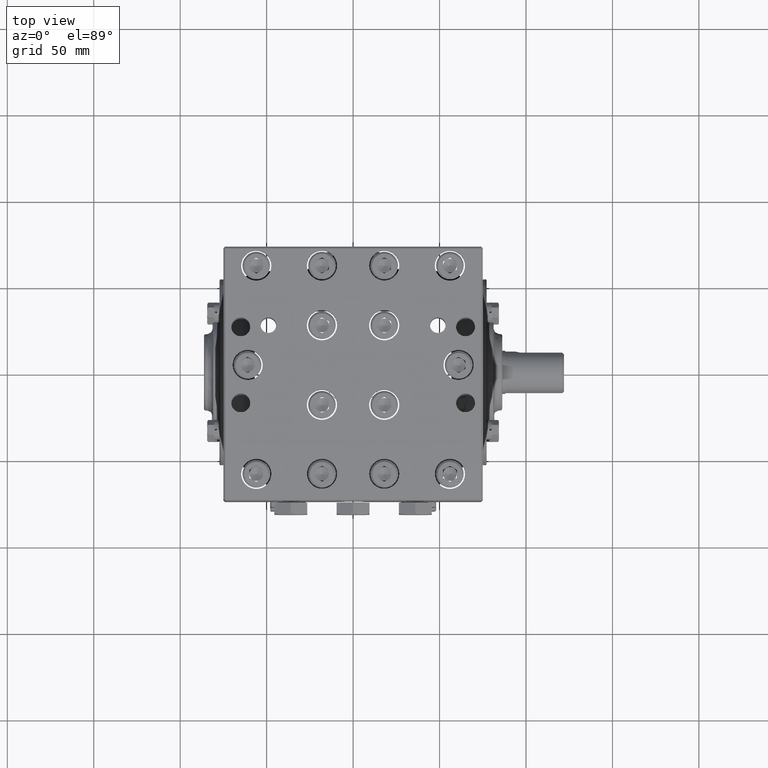
[diagram: clean part render]
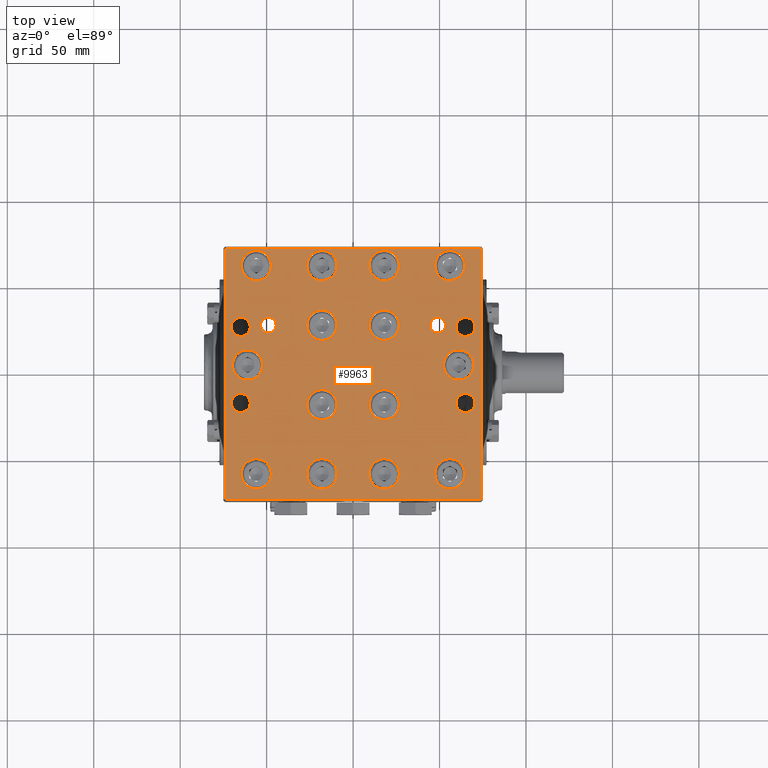
[diagram: same view with one face highlighted and labeled with its STEP entity id]
A machine part, top view. The second image highlights one B-rep face of the part: STEP entity #9963.
In plain terms, the highlighted planar face has unit normal (0, -0, 1).
Its self-contained STEP definition (entity closure, byte-faithful):
#168 = DIRECTION ( 'NONE',  ( -0.000000000000000000, -0.000000000000000000, 1.000000000000000000 ) ) ;
#219 = DIRECTION ( 'NONE',  ( 1.000000000000000000, 0.000000000000000000, 0.000000000000000000 ) ) ;
#245 = AXIS2_PLACEMENT_3D ( 'NONE', #63270, #8227, #35252 ) ;
#397 = ORIENTED_EDGE ( 'NONE', *, *, #61478, .F. ) ;
#734 = EDGE_CURVE ( 'NONE', #26983, #3858, #22505, .T. ) ;
#753 = AXIS2_PLACEMENT_3D ( 'NONE', #68820, #24210, #75833 ) ;
#777 = ORIENTED_EDGE ( 'NONE', *, *, #27638, .F. ) ;
#787 = CARTESIAN_POINT ( 'NONE',  ( -1.053149606299212504, -0.9055118110236222151, 9.645669291338583307 ) ) ;
#946 = VERTEX_POINT ( 'NONE', #38768 ) ;
#1175 = CARTESIAN_POINT ( 'NONE',  ( -2.775590551181102317, 0.8661417322834643606, 9.645669291338583307 ) ) ;
#1391 = EDGE_LOOP ( 'NONE', ( #58541, #78984 ) ) ;
#1556 = AXIS2_PLACEMENT_3D ( 'NONE', #37296, #64384, #2776 ) ;
#1782 = VERTEX_POINT ( 'NONE', #76249 ) ;
#2192 = CARTESIAN_POINT ( 'NONE',  ( -2.106299212598425008, 0.9055118110236218820, 9.645669291338583307 ) ) ;
#2776 = DIRECTION ( 'NONE',  ( 1.000000000000000000, 0.000000000000000000, 0.000000000000000000 ) ) ;
#2870 = ORIENTED_EDGE ( 'NONE', *, *, #63458, .F. ) ;
#3159 = FACE_BOUND ( 'NONE', #59503, .T. ) ;
#3368 = AXIS2_PLACEMENT_3D ( 'NONE', #61323, #55628, #28064 ) ;
#3487 = AXIS2_PLACEMENT_3D ( 'NONE', #55746, #16411, #63164 ) ;
#3578 = CARTESIAN_POINT ( 'NONE',  ( -2.204724409448818534, 2.263779527559055094, 9.645669291338583307 ) ) ;
#3858 = VERTEX_POINT ( 'NONE', #79005 ) ;
#4293 = CARTESIAN_POINT ( 'NONE',  ( -2.401574803149606474, 0.000000000000000000, 9.645669291338583307 ) ) ;
#4439 = FACE_BOUND ( 'NONE', #85789, .T. ) ;
#4545 = CIRCLE ( 'NONE', #46427, 0.2165354330708657848 ) ;
#4573 = EDGE_CURVE ( 'NONE', #33326, #11340, #74569, .T. ) ;
#4709 = AXIS2_PLACEMENT_3D ( 'NONE', #4293, #10040, #82191 ) ;
#4740 = EDGE_CURVE ( 'NONE', #946, #52724, #19871, .T. ) ;
#4776 = VERTEX_POINT ( 'NONE', #61217 ) ;
#4889 = FACE_BOUND ( 'NONE', #66120, .T. ) ;
#4940 = ORIENTED_EDGE ( 'NONE', *, *, #734, .F. ) ;
#5188 = AXIS2_PLACEMENT_3D ( 'NONE', #61112, #23050, #8222 ) ;
#5457 = DIRECTION ( 'NONE',  ( 1.000000000000000000, 0.000000000000000000, 0.000000000000000000 ) ) ;
#5795 = AXIS2_PLACEMENT_3D ( 'NONE', #67586, #41351, #72547 ) ;
#6129 = CIRCLE ( 'NONE', #29885, 0.3444881889763777294 ) ;
#6638 = CIRCLE ( 'NONE', #55308, 0.3444881889763777294 ) ;
#6674 = ORIENTED_EDGE ( 'NONE', *, *, #63878, .F. ) ;
#6748 = CARTESIAN_POINT ( 'NONE',  ( -1.860236220472440971, -2.480314960629921295, 9.645669291338583307 ) ) ;
#7392 = EDGE_CURVE ( 'NONE', #58172, #52940, #11167, .T. ) ;
#7593 = DIRECTION ( 'NONE',  ( -0.000000000000000000, -0.000000000000000000, 1.000000000000000000 ) ) ;
#7763 = DIRECTION ( 'NONE',  ( 1.000000000000000000, 0.000000000000000000, 0.000000000000000000 ) ) ;
#7812 = EDGE_LOOP ( 'NONE', ( #38690, #73908 ) ) ;
#8045 = CARTESIAN_POINT ( 'NONE',  ( -2.559055118110236560, -0.8661417322834646937, 9.645669291338583307 ) ) ;
#8222 = DIRECTION ( 'NONE',  ( 1.000000000000000000, 0.000000000000000000, 0.000000000000000000 ) ) ;
#8227 = DIRECTION ( 'NONE',  ( -0.000000000000000000, -0.000000000000000000, 1.000000000000000000 ) ) ;
#8850 = DIRECTION ( 'NONE',  ( 1.000000000000000000, 0.000000000000000000, 0.000000000000000000 ) ) ;
#8887 = DIRECTION ( 'NONE',  ( 1.000000000000000000, 0.000000000000000000, 0.000000000000000000 ) ) ;
#8889 = VERTEX_POINT ( 'NONE', #26290 ) ;
#8987 = CIRCLE ( 'NONE', #22954, 0.3444881889763778404 ) ;
#9105 = VERTEX_POINT ( 'NONE', #2192 ) ;
#9725 = CARTESIAN_POINT ( 'NONE',  ( -0.7086614173228347191, 2.263779527559055094, 9.645669291338583307 ) ) ;
#9782 = CARTESIAN_POINT ( 'NONE',  ( -2.549212598425196319, -2.480314960629921295, 9.645669291338583307 ) ) ;
#9783 = VERTEX_POINT ( 'NONE', #6748 ) ;
#9829 = CIRCLE ( 'NONE', #53092, 0.2165354330708657848 ) ;
#9832 = VERTEX_POINT ( 'NONE', #35063 ) ;
#9963 = ADVANCED_FACE ( 'NONE', ( #57372, #63080, #44252, #30677, #84060, #50377, #77491, #71771, #17601, #70912, #17170, #51661, #44661, #4439, #23304, #3159, #24586, #4889, #70472, #30267, #10186 ), #49962, .T. ) ;
#10040 = DIRECTION ( 'NONE',  ( -0.000000000000000000, -0.000000000000000000, 1.000000000000000000 ) ) ;
#10186 = FACE_BOUND ( 'NONE', #48661, .T. ) ;
#10916 = DIRECTION ( 'NONE',  ( -0.000000000000000000, -0.000000000000000000, 1.000000000000000000 ) ) ;
#11051 = DIRECTION ( 'NONE',  ( 1.000000000000000000, 0.000000000000000000, 0.000000000000000000 ) ) ;
#11131 = VERTEX_POINT ( 'NONE', #55996 ) ;
#11167 = CIRCLE ( 'NONE', #20949, 0.3444881889763778404 ) ;
#11340 = VERTEX_POINT ( 'NONE', #19636 ) ;
#11585 = VERTEX_POINT ( 'NONE', #29623 ) ;
#11732 = DIRECTION ( 'NONE',  ( 1.000000000000000000, 0.000000000000000000, 0.000000000000000000 ) ) ;
#11848 = DIRECTION ( 'NONE',  ( -0.000000000000000000, -0.000000000000000000, 1.000000000000000000 ) ) ;
#11956 = VERTEX_POINT ( 'NONE', #42054 ) ;
#12077 = CIRCLE ( 'NONE', #77659, 0.3444881889763777294 ) ;
#12099 = AXIS2_PLACEMENT_3D ( 'NONE', #65491, #71601, #44923 ) ;
#12323 = EDGE_LOOP ( 'NONE', ( #4940, #67519 ) ) ;
#12371 = EDGE_CURVE ( 'NONE', #18687, #49955, #64455, .T. ) ;
#12379 = ORIENTED_EDGE ( 'NONE', *, *, #82829, .F. ) ;
#12511 = CARTESIAN_POINT ( 'NONE',  ( 0.7086614173228347191, 2.263779527559055094, 9.645669291338583307 ) ) ;
#12532 = AXIS2_PLACEMENT_3D ( 'NONE', #59804, #47084, #7763 ) ;
#12607 = DIRECTION ( 'NONE',  ( 1.000000000000000000, 0.000000000000000000, 0.000000000000000000 ) ) ;
#12794 = DIRECTION ( 'NONE',  ( 1.000000000000000000, 0.000000000000000000, 0.000000000000000000 ) ) ;
#12864 = ORIENTED_EDGE ( 'NONE', *, *, #76296, .F. ) ;
#12892 = VERTEX_POINT ( 'NONE', #25913 ) ;
#12895 = CARTESIAN_POINT ( 'NONE',  ( -1.929133858267716883, 0.9055118110236218820, 9.645669291338583307 ) ) ;
#12912 = CARTESIAN_POINT ( 'NONE',  ( -2.913385826771653697, -3.090551181102361600, 9.645669291338581530 ) ) ;
#13313 = AXIS2_PLACEMENT_3D ( 'NONE', #27251, #60068, #60926 ) ;
#13665 = VERTEX_POINT ( 'NONE', #66333 ) ;
#13809 = VERTEX_POINT ( 'NONE', #1175 ) ;
#14366 = EDGE_CURVE ( 'NONE', #11340, #32042, #45032, .T. ) ;
#15026 = VERTEX_POINT ( 'NONE', #54956 ) ;
#15109 = CARTESIAN_POINT ( 'NONE',  ( -0.7086614173228347191, -2.480314960629921295, 9.645669291338583307 ) ) ;
#15126 = CARTESIAN_POINT ( 'NONE',  ( 0.7086614173228347191, -0.9055118110236222151, 9.645669291338583307 ) ) ;
#15632 = CARTESIAN_POINT ( 'NONE',  ( -2.775590551181102317, -0.8661417322834646937, 9.645669291338583307 ) ) ;
#16411 = DIRECTION ( 'NONE',  ( -0.000000000000000000, -0.000000000000000000, 1.000000000000000000 ) ) ;
#17170 = FACE_BOUND ( 'NONE', #53521, .T. ) ;
#17550 = VERTEX_POINT ( 'NONE', #28199 ) ;
#17601 = FACE_BOUND ( 'NONE', #19376, .T. ) ;
#17617 = EDGE_LOOP ( 'NONE', ( #42773, #12864 ) ) ;
#17693 = DIRECTION ( 'NONE',  ( 1.000000000000000000, 0.000000000000000000, 0.000000000000000000 ) ) ;
#17835 = AXIS2_PLACEMENT_3D ( 'NONE', #24114, #63478, #57340 ) ;
#17855 = ORIENTED_EDGE ( 'NONE', *, *, #33064, .F. ) ;
#18304 = CIRCLE ( 'NONE', #35046, 0.3444881889763777294 ) ;
#18632 = AXIS2_PLACEMENT_3D ( 'NONE', #47397, #168, #72760 ) ;
#18687 = VERTEX_POINT ( 'NONE', #35927 ) ;
#18795 = VERTEX_POINT ( 'NONE', #37232 ) ;
#18861 = CIRCLE ( 'NONE', #30006, 0.3444881889763778404 ) ;
#19091 = DIRECTION ( 'NONE',  ( 1.000000000000000000, 0.000000000000000000, 0.000000000000000000 ) ) ;
#19376 = EDGE_LOOP ( 'NONE', ( #76679, #84233 ) ) ;
#19413 = DIRECTION ( 'NONE',  ( 1.000000000000000000, 0.000000000000000000, 0.000000000000000000 ) ) ;
#19636 = CARTESIAN_POINT ( 'NONE',  ( 2.913385826771653697, 2.657480314960630086, 9.645669291338583307 ) ) ;
#19717 = CIRCLE ( 'NONE', #68582, 0.2165354330708657848 ) ;
#19871 = CIRCLE ( 'NONE', #63206, 0.3444881889763778404 ) ;
#20012 = DIRECTION ( 'NONE',  ( -0.000000000000000000, -0.000000000000000000, 1.000000000000000000 ) ) ;
#20027 = DIRECTION ( 'NONE',  ( 1.000000000000000000, 0.000000000000000000, 0.000000000000000000 ) ) ;
#20133 = DIRECTION ( 'NONE',  ( -0.000000000000000000, -0.000000000000000000, 1.000000000000000000 ) ) ;
#20251 = DIRECTION ( 'NONE',  ( 1.000000000000000000, 0.000000000000000000, 0.000000000000000000 ) ) ;
#20949 = AXIS2_PLACEMENT_3D ( 'NONE', #80154, #32480, #20251 ) ;
#21085 = CARTESIAN_POINT ( 'NONE',  ( -0.7086614173228347191, -2.480314960629921295, 9.645669291338583307 ) ) ;
#22505 = CIRCLE ( 'NONE', #67165, 0.3444881889763778404 ) ;
#22692 = VERTEX_POINT ( 'NONE', #68714 ) ;
#22746 = EDGE_CURVE ( 'NONE', #12892, #1782, #65261, .T. ) ;
#22891 = CIRCLE ( 'NONE', #18632, 0.3444881889763778404 ) ;
#22954 = AXIS2_PLACEMENT_3D ( 'NONE', #9725, #29345, #8850 ) ;
#23050 = DIRECTION ( 'NONE',  ( -0.000000000000000000, -0.000000000000000000, 1.000000000000000000 ) ) ;
#23059 = AXIS2_PLACEMENT_3D ( 'NONE', #41916, #42341, #48071 ) ;
#23211 = AXIS2_PLACEMENT_3D ( 'NONE', #76201, #74909, #8887 ) ;
#23304 = FACE_BOUND ( 'NONE', #7812, .T. ) ;
#23719 = DIRECTION ( 'NONE',  ( 0.000000000000000000, -1.000000000000000000, -4.720335989052536622E-17 ) ) ;
#23735 = EDGE_LOOP ( 'NONE', ( #31538, #66749 ) ) ;
#23896 = EDGE_CURVE ( 'NONE', #44394, #9783, #45823, .T. ) ;
#24114 = CARTESIAN_POINT ( 'NONE',  ( 2.559055118110236560, 0.8661417322834641386, 9.645669291338583307 ) ) ;
#24147 = DIRECTION ( 'NONE',  ( 0.000000000000000000, -4.720335989052536622E-17, 1.000000000000000000 ) ) ;
#24210 = DIRECTION ( 'NONE',  ( -0.000000000000000000, -0.000000000000000000, 1.000000000000000000 ) ) ;
#24287 = DIRECTION ( 'NONE',  ( -0.000000000000000000, -0.000000000000000000, 1.000000000000000000 ) ) ;
#24577 = CIRCLE ( 'NONE', #53820, 0.3444881889763778404 ) ;
#24586 = FACE_BOUND ( 'NONE', #26729, .T. ) ;
#24966 = CARTESIAN_POINT ( 'NONE',  ( 2.401574803149606474, 0.000000000000000000, 9.645669291338583307 ) ) ;
#25424 = VERTEX_POINT ( 'NONE', #36237 ) ;
#25738 = CIRCLE ( 'NONE', #28510, 0.3444881889763778404 ) ;
#25751 = DIRECTION ( 'NONE',  ( 1.000000000000000000, 0.000000000000000000, 0.000000000000000000 ) ) ;
#25913 = CARTESIAN_POINT ( 'NONE',  ( 2.342519685039370803, 0.8661417322834641386, 9.645669291338583307 ) ) ;
#25972 = EDGE_CURVE ( 'NONE', #52940, #58172, #59419, .T. ) ;
#26290 = CARTESIAN_POINT ( 'NONE',  ( -2.057086614173228689, 0.000000000000000000, 9.645669291338583307 ) ) ;
#26308 = AXIS2_PLACEMENT_3D ( 'NONE', #72936, #66374, #20027 ) ;
#26347 = DIRECTION ( 'NONE',  ( -0.000000000000000000, -0.000000000000000000, 1.000000000000000000 ) ) ;
#26729 = EDGE_LOOP ( 'NONE', ( #75794, #6674 ) ) ;
#26983 = VERTEX_POINT ( 'NONE', #37128 ) ;
#27044 = EDGE_CURVE ( 'NONE', #52724, #946, #24577, .T. ) ;
#27251 = CARTESIAN_POINT ( 'NONE',  ( 2.204724409448818534, 2.263779527559055094, 9.645669291338583307 ) ) ;
#27277 = CIRCLE ( 'NONE', #13313, 0.3444881889763777294 ) ;
#27638 = EDGE_CURVE ( 'NONE', #11585, #54830, #32971, .T. ) ;
#27747 = DIRECTION ( 'NONE',  ( -0.000000000000000000, -0.000000000000000000, 1.000000000000000000 ) ) ;
#28064 = DIRECTION ( 'NONE',  ( 1.000000000000000000, 0.000000000000000000, 0.000000000000000000 ) ) ;
#28199 = CARTESIAN_POINT ( 'NONE',  ( -2.342519685039370803, 0.8661417322834643606, 9.645669291338583307 ) ) ;
#28322 = CIRCLE ( 'NONE', #74402, 0.2165354330708657848 ) ;
#28332 = ORIENTED_EDGE ( 'NONE', *, *, #82144, .F. ) ;
#28510 = AXIS2_PLACEMENT_3D ( 'NONE', #49466, #38366, #11732 ) ;
#28647 = AXIS2_PLACEMENT_3D ( 'NONE', #21085, #60461, #35031 ) ;
#29345 = DIRECTION ( 'NONE',  ( -0.000000000000000000, -0.000000000000000000, 1.000000000000000000 ) ) ;
#29623 = CARTESIAN_POINT ( 'NONE',  ( 1.860236220472440971, -2.480314960629921295, 9.645669291338583307 ) ) ;
#29884 = CIRCLE ( 'NONE', #3368, 0.1771653543307082912 ) ;
#29885 = AXIS2_PLACEMENT_3D ( 'NONE', #57826, #77062, #11051 ) ;
#30006 = AXIS2_PLACEMENT_3D ( 'NONE', #73293, #60178, #46164 ) ;
#30143 = EDGE_LOOP ( 'NONE', ( #68028, #31490 ) ) ;
#30267 = FACE_BOUND ( 'NONE', #23735, .T. ) ;
#30327 = CARTESIAN_POINT ( 'NONE',  ( -0.3641732283464568787, 2.263779527559055094, 9.645669291338583307 ) ) ;
#30677 = FACE_BOUND ( 'NONE', #17617, .T. ) ;
#30980 = ORIENTED_EDGE ( 'NONE', *, *, #14366, .T. ) ;
#31013 = CARTESIAN_POINT ( 'NONE',  ( -2.952755905511811108, -3.051181102362204189, 9.645669291338581530 ) ) ;
#31490 = ORIENTED_EDGE ( 'NONE', *, *, #69628, .F. ) ;
#31500 = EDGE_CURVE ( 'NONE', #37099, #11956, #42767, .T. ) ;
#31538 = ORIENTED_EDGE ( 'NONE', *, *, #7392, .F. ) ;
#31617 = CARTESIAN_POINT ( 'NONE',  ( 2.913385826771653697, -3.051181102362204189, 9.645669291338581530 ) ) ;
#31931 = ORIENTED_EDGE ( 'NONE', *, *, #84629, .F. ) ;
#32042 = VERTEX_POINT ( 'NONE', #48722 ) ;
#32121 = EDGE_LOOP ( 'NONE', ( #30980, #59795, #82062, #32597 ) ) ;
#32380 = EDGE_CURVE ( 'NONE', #75688, #33465, #8987, .T. ) ;
#32480 = DIRECTION ( 'NONE',  ( -0.000000000000000000, -0.000000000000000000, 1.000000000000000000 ) ) ;
#32597 = ORIENTED_EDGE ( 'NONE', *, *, #4573, .T. ) ;
#32971 = CIRCLE ( 'NONE', #23211, 0.3444881889763777294 ) ;
#33064 = EDGE_CURVE ( 'NONE', #79858, #76880, #35762, .T. ) ;
#33326 = VERTEX_POINT ( 'NONE', #31617 ) ;
#33465 = VERTEX_POINT ( 'NONE', #47758 ) ;
#33642 = CARTESIAN_POINT ( 'NONE',  ( -1.860236220472440971, 2.263779527559055094, 9.645669291338583307 ) ) ;
#33738 = AXIS2_PLACEMENT_3D ( 'NONE', #80781, #20012, #79493 ) ;
#33782 = CARTESIAN_POINT ( 'NONE',  ( 1.053149606299212504, 2.263779527559055094, 9.645669291338583307 ) ) ;
#33901 = VECTOR ( 'NONE', #65181, 39.37007874015748143 ) ;
#34309 = DIRECTION ( 'NONE',  ( 0.000000000000000000, 1.000000000000000000, 4.720335989052536622E-17 ) ) ;
#35031 = DIRECTION ( 'NONE',  ( 1.000000000000000000, 0.000000000000000000, 0.000000000000000000 ) ) ;
#35046 = AXIS2_PLACEMENT_3D ( 'NONE', #24966, #11848, #56910 ) ;
#35063 = CARTESIAN_POINT ( 'NONE',  ( 2.342519685039370803, -0.8661417322834635835, 9.645669291338583307 ) ) ;
#35089 = DIRECTION ( 'NONE',  ( -0.000000000000000000, -0.000000000000000000, 1.000000000000000000 ) ) ;
#35252 = DIRECTION ( 'NONE',  ( 1.000000000000000000, 0.000000000000000000, 0.000000000000000000 ) ) ;
#35405 = DIRECTION ( 'NONE',  ( -0.000000000000000000, -0.000000000000000000, 1.000000000000000000 ) ) ;
#35622 = CIRCLE ( 'NONE', #753, 0.3444881889763778404 ) ;
#35762 = CIRCLE ( 'NONE', #84700, 0.1771653543307082912 ) ;
#35927 = CARTESIAN_POINT ( 'NONE',  ( 1.053149606299212504, -2.480314960629921295, 9.645669291338583307 ) ) ;
#36237 = CARTESIAN_POINT ( 'NONE',  ( -0.3641732283464568787, -2.480314960629921295, 9.645669291338583307 ) ) ;
#37099 = VERTEX_POINT ( 'NONE', #62226 ) ;
#37128 = CARTESIAN_POINT ( 'NONE',  ( 1.053149606299212504, 0.9055118110236218820, 9.645669291338583307 ) ) ;
#37161 = DIRECTION ( 'NONE',  ( 1.000000000000000000, 0.000000000000000000, 0.000000000000000000 ) ) ;
#37232 = CARTESIAN_POINT ( 'NONE',  ( -1.751968503937008759, 0.9055118110236218820, 9.645669291338583307 ) ) ;
#37296 = CARTESIAN_POINT ( 'NONE',  ( -2.401574803149606474, 0.000000000000000000, 9.645669291338583307 ) ) ;
#37457 = DIRECTION ( 'NONE',  ( 1.000000000000000000, 0.000000000000000000, 0.000000000000000000 ) ) ;
#37576 = EDGE_LOOP ( 'NONE', ( #56933, #2870 ) ) ;
#38207 = CIRCLE ( 'NONE', #4709, 0.3444881889763777294 ) ;
#38366 = DIRECTION ( 'NONE',  ( -0.000000000000000000, -0.000000000000000000, 1.000000000000000000 ) ) ;
#38690 = ORIENTED_EDGE ( 'NONE', *, *, #82312, .F. ) ;
#38768 = CARTESIAN_POINT ( 'NONE',  ( 1.053149606299212504, -0.9055118110236222151, 9.645669291338583307 ) ) ;
#39293 = CIRCLE ( 'NONE', #40660, 0.3444881889763778404 ) ;
#39424 = VERTEX_POINT ( 'NONE', #65887 ) ;
#40660 = AXIS2_PLACEMENT_3D ( 'NONE', #15109, #20133, #17693 ) ;
#41351 = DIRECTION ( 'NONE',  ( -0.000000000000000000, -0.000000000000000000, 1.000000000000000000 ) ) ;
#41744 = DIRECTION ( 'NONE',  ( -0.000000000000000000, -0.000000000000000000, 1.000000000000000000 ) ) ;
#41796 = ORIENTED_EDGE ( 'NONE', *, *, #57341, .F. ) ;
#41916 = CARTESIAN_POINT ( 'NONE',  ( 1.929133858267716661, 0.9055118110236218820, 9.645669291338583307 ) ) ;
#42054 = CARTESIAN_POINT ( 'NONE',  ( 2.549212598425196319, 2.263779527559055094, 9.645669291338583307 ) ) ;
#42341 = DIRECTION ( 'NONE',  ( -0.000000000000000000, -0.000000000000000000, 1.000000000000000000 ) ) ;
#42550 = CIRCLE ( 'NONE', #3487, 0.3444881889763777294 ) ;
#42736 = CIRCLE ( 'NONE', #73268, 0.1771653543307082912 ) ;
#42767 = CIRCLE ( 'NONE', #12099, 0.3444881889763777294 ) ;
#42773 = ORIENTED_EDGE ( 'NONE', *, *, #59726, .F. ) ;
#42820 = ORIENTED_EDGE ( 'NONE', *, *, #80399, .F. ) ;
#42974 = CARTESIAN_POINT ( 'NONE',  ( -0.7086614173228347191, 0.9055118110236218820, 9.645669291338583307 ) ) ;
#42983 = CARTESIAN_POINT ( 'NONE',  ( 0.7086614173228347191, 0.9055118110236218820, 9.645669291338583307 ) ) ;
#43525 = EDGE_CURVE ( 'NONE', #13809, #17550, #53781, .T. ) ;
#43684 = EDGE_CURVE ( 'NONE', #71254, #11131, #18861, .T. ) ;
#44155 = LINE ( 'NONE', #31013, #85855 ) ;
#44252 = FACE_BOUND ( 'NONE', #65910, .T. ) ;
#44394 = VERTEX_POINT ( 'NONE', #9782 ) ;
#44591 = ORIENTED_EDGE ( 'NONE', *, *, #22746, .F. ) ;
#44661 = FACE_BOUND ( 'NONE', #69066, .T. ) ;
#44923 = DIRECTION ( 'NONE',  ( 1.000000000000000000, 0.000000000000000000, 0.000000000000000000 ) ) ;
#45032 = LINE ( 'NONE', #58196, #33901 ) ;
#45308 = DIRECTION ( 'NONE',  ( -0.000000000000000000, -0.000000000000000000, 1.000000000000000000 ) ) ;
#45812 = CARTESIAN_POINT ( 'NONE',  ( -2.746062992125984259, 4.218763579739894579E-17, 9.645669291338583307 ) ) ;
#45823 = CIRCLE ( 'NONE', #26308, 0.3444881889763777294 ) ;
#46094 = CARTESIAN_POINT ( 'NONE',  ( 2.549212598425196319, -2.480314960629921295, 9.645669291338583307 ) ) ;
#46164 = DIRECTION ( 'NONE',  ( 1.000000000000000000, 0.000000000000000000, 0.000000000000000000 ) ) ;
#46281 = ORIENTED_EDGE ( 'NONE', *, *, #62396, .F. ) ;
#46365 = CIRCLE ( 'NONE', #33738, 0.3444881889763777294 ) ;
#46427 = AXIS2_PLACEMENT_3D ( 'NONE', #8045, #7593, #19413 ) ;
#46844 = EDGE_CURVE ( 'NONE', #9783, #44394, #6638, .T. ) ;
#47084 = DIRECTION ( 'NONE',  ( -0.000000000000000000, -0.000000000000000000, 1.000000000000000000 ) ) ;
#47193 = DIRECTION ( 'NONE',  ( -0.000000000000000000, -0.000000000000000000, 1.000000000000000000 ) ) ;
#47397 = CARTESIAN_POINT ( 'NONE',  ( 0.7086614173228347191, 0.9055118110236218820, 9.645669291338583307 ) ) ;
#47462 = ORIENTED_EDGE ( 'NONE', *, *, #46844, .F. ) ;
#47758 = CARTESIAN_POINT ( 'NONE',  ( -1.053149606299212504, 2.263779527559055094, 9.645669291338583307 ) ) ;
#48071 = DIRECTION ( 'NONE',  ( 1.000000000000000000, 0.000000000000000000, 0.000000000000000000 ) ) ;
#48661 = EDGE_LOOP ( 'NONE', ( #41796, #70749 ) ) ;
#48697 = DIRECTION ( 'NONE',  ( -0.000000000000000000, -0.000000000000000000, 1.000000000000000000 ) ) ;
#48722 = CARTESIAN_POINT ( 'NONE',  ( -2.913385826771653697, 2.657480314960630086, 9.645669291338583307 ) ) ;
#49466 = CARTESIAN_POINT ( 'NONE',  ( -0.7086614173228347191, -0.9055118110236222151, 9.645669291338583307 ) ) ;
#49736 = EDGE_CURVE ( 'NONE', #11131, #71254, #64659, .T. ) ;
#49955 = VERTEX_POINT ( 'NONE', #59577 ) ;
#49962 = PLANE ( 'NONE',  #74066 ) ;
#50377 = FACE_BOUND ( 'NONE', #30143, .T. ) ;
#50555 = CIRCLE ( 'NONE', #245, 0.3444881889763778404 ) ;
#50558 = ORIENTED_EDGE ( 'NONE', *, *, #63251, .F. ) ;
#50571 = VECTOR ( 'NONE', #34309, 39.37007874015748143 ) ;
#50742 = ORIENTED_EDGE ( 'NONE', *, *, #49736, .F. ) ;
#51344 = CARTESIAN_POINT ( 'NONE',  ( 0.3641732283464568787, -0.9055118110236222151, 9.645669291338583307 ) ) ;
#51661 = FACE_BOUND ( 'NONE', #37576, .T. ) ;
#51710 = EDGE_CURVE ( 'NONE', #25424, #80085, #39293, .T. ) ;
#51836 = DIRECTION ( 'NONE',  ( -0.000000000000000000, -0.000000000000000000, 1.000000000000000000 ) ) ;
#52163 = CARTESIAN_POINT ( 'NONE',  ( 2.106299212598425008, 0.9055118110236218820, 9.645669291338583307 ) ) ;
#52275 = VERTEX_POINT ( 'NONE', #787 ) ;
#52412 = ORIENTED_EDGE ( 'NONE', *, *, #82376, .F. ) ;
#52472 = ORIENTED_EDGE ( 'NONE', *, *, #52926, .F. ) ;
#52724 = VERTEX_POINT ( 'NONE', #51344 ) ;
#52838 = CARTESIAN_POINT ( 'NONE',  ( 2.559055118110236560, -0.8661417322834635835, 9.645669291338583307 ) ) ;
#52926 = EDGE_CURVE ( 'NONE', #67151, #13665, #4545, .T. ) ;
#52940 = VERTEX_POINT ( 'NONE', #74455 ) ;
#53092 = AXIS2_PLACEMENT_3D ( 'NONE', #76542, #35405, #37161 ) ;
#53521 = EDGE_LOOP ( 'NONE', ( #63378, #50558 ) ) ;
#53781 = CIRCLE ( 'NONE', #83108, 0.2165354330708657848 ) ;
#53820 = AXIS2_PLACEMENT_3D ( 'NONE', #69910, #10916, #85998 ) ;
#54830 = VERTEX_POINT ( 'NONE', #46094 ) ;
#54956 = CARTESIAN_POINT ( 'NONE',  ( -0.3641732283464568787, -0.9055118110236222151, 9.645669291338583307 ) ) ;
#55308 = AXIS2_PLACEMENT_3D ( 'NONE', #59335, #45308, #37457 ) ;
#55522 = EDGE_CURVE ( 'NONE', #15026, #52275, #25738, .T. ) ;
#55628 = DIRECTION ( 'NONE',  ( -0.000000000000000000, -0.000000000000000000, 1.000000000000000000 ) ) ;
#55684 = DIRECTION ( 'NONE',  ( 1.000000000000000000, 0.000000000000000000, 0.000000000000000000 ) ) ;
#55746 = CARTESIAN_POINT ( 'NONE',  ( -2.204724409448818534, 2.263779527559055094, 9.645669291338583307 ) ) ;
#55996 = CARTESIAN_POINT ( 'NONE',  ( -1.053149606299212504, 0.9055118110236218820, 9.645669291338583307 ) ) ;
#56335 = CARTESIAN_POINT ( 'NONE',  ( -2.913385826771653697, -3.051181102362204189, 9.645669291338581530 ) ) ;
#56350 = EDGE_CURVE ( 'NONE', #39424, #70874, #42550, .T. ) ;
#56514 = CIRCLE ( 'NONE', #23059, 0.1771653543307082912 ) ;
#56910 = DIRECTION ( 'NONE',  ( 1.000000000000000000, 0.000000000000000000, 0.000000000000000000 ) ) ;
#56933 = ORIENTED_EDGE ( 'NONE', *, *, #51710, .F. ) ;
#57340 = DIRECTION ( 'NONE',  ( 1.000000000000000000, 0.000000000000000000, 0.000000000000000000 ) ) ;
#57341 = EDGE_CURVE ( 'NONE', #11956, #37099, #27277, .T. ) ;
#57372 = FACE_OUTER_BOUND ( 'NONE', #32121, .T. ) ;
#57826 = CARTESIAN_POINT ( 'NONE',  ( 2.204724409448818534, -2.480314960629921295, 9.645669291338583307 ) ) ;
#58074 = AXIS2_PLACEMENT_3D ( 'NONE', #72810, #51836, #219 ) ;
#58172 = VERTEX_POINT ( 'NONE', #33782 ) ;
#58196 = CARTESIAN_POINT ( 'NONE',  ( -2.952755905511811108, 2.657480314960630086, 9.645669291338583307 ) ) ;
#58541 = ORIENTED_EDGE ( 'NONE', *, *, #64519, .F. ) ;
#58580 = EDGE_CURVE ( 'NONE', #78485, #33326, #44155, .T. ) ;
#59335 = CARTESIAN_POINT ( 'NONE',  ( -2.204724409448818534, -2.480314960629921295, 9.645669291338583307 ) ) ;
#59419 = CIRCLE ( 'NONE', #77561, 0.3444881889763778404 ) ;
#59492 = CARTESIAN_POINT ( 'NONE',  ( -2.559055118110236560, -0.8661417322834646937, 9.645669291338583307 ) ) ;
#59503 = EDGE_LOOP ( 'NONE', ( #397, #777 ) ) ;
#59577 = CARTESIAN_POINT ( 'NONE',  ( 0.3641732283464568787, -2.480314960629921295, 9.645669291338583307 ) ) ;
#59726 = EDGE_CURVE ( 'NONE', #22692, #9832, #28322, .T. ) ;
#59795 = ORIENTED_EDGE ( 'NONE', *, *, #64840, .T. ) ;
#59804 = CARTESIAN_POINT ( 'NONE',  ( 2.559055118110236560, 0.8661417322834641386, 9.645669291338583307 ) ) ;
#60068 = DIRECTION ( 'NONE',  ( -0.000000000000000000, -0.000000000000000000, 1.000000000000000000 ) ) ;
#60178 = DIRECTION ( 'NONE',  ( -0.000000000000000000, -0.000000000000000000, 1.000000000000000000 ) ) ;
#60335 = DIRECTION ( 'NONE',  ( 1.000000000000000000, 0.000000000000000000, 0.000000000000000000 ) ) ;
#60461 = DIRECTION ( 'NONE',  ( -0.000000000000000000, -0.000000000000000000, 1.000000000000000000 ) ) ;
#60880 = CARTESIAN_POINT ( 'NONE',  ( 2.057086614173228689, 4.218763579739894579E-17, 9.645669291338583307 ) ) ;
#60926 = DIRECTION ( 'NONE',  ( 1.000000000000000000, 0.000000000000000000, 0.000000000000000000 ) ) ;
#61112 = CARTESIAN_POINT ( 'NONE',  ( 2.559055118110236560, -0.8661417322834635835, 9.645669291338583307 ) ) ;
#61217 = CARTESIAN_POINT ( 'NONE',  ( 2.746062992125984259, 0.000000000000000000, 9.645669291338583307 ) ) ;
#61323 = CARTESIAN_POINT ( 'NONE',  ( -1.929133858267716883, 0.9055118110236218820, 9.645669291338583307 ) ) ;
#61423 = CARTESIAN_POINT ( 'NONE',  ( 1.929133858267716661, 0.9055118110236218820, 9.645669291338583307 ) ) ;
#61478 = EDGE_CURVE ( 'NONE', #54830, #11585, #6129, .T. ) ;
#62226 = CARTESIAN_POINT ( 'NONE',  ( 1.860236220472440971, 2.263779527559055094, 9.645669291338583307 ) ) ;
#62255 = CIRCLE ( 'NONE', #58074, 0.3444881889763778404 ) ;
#62396 = EDGE_CURVE ( 'NONE', #76880, #79858, #56514, .T. ) ;
#63062 = DIRECTION ( 'NONE',  ( -0.000000000000000000, -0.000000000000000000, 1.000000000000000000 ) ) ;
#63080 = FACE_BOUND ( 'NONE', #77047, .T. ) ;
#63164 = DIRECTION ( 'NONE',  ( 1.000000000000000000, 0.000000000000000000, 0.000000000000000000 ) ) ;
#63206 = AXIS2_PLACEMENT_3D ( 'NONE', #15126, #41744, #68417 ) ;
#63251 = EDGE_CURVE ( 'NONE', #52275, #15026, #35622, .T. ) ;
#63270 = CARTESIAN_POINT ( 'NONE',  ( -0.7086614173228347191, 2.263779527559055094, 9.645669291338583307 ) ) ;
#63378 = ORIENTED_EDGE ( 'NONE', *, *, #55522, .F. ) ;
#63458 = EDGE_CURVE ( 'NONE', #80085, #25424, #66350, .T. ) ;
#63478 = DIRECTION ( 'NONE',  ( -0.000000000000000000, -0.000000000000000000, 1.000000000000000000 ) ) ;
#63878 = EDGE_CURVE ( 'NONE', #49955, #18687, #62255, .T. ) ;
#64384 = DIRECTION ( 'NONE',  ( -0.000000000000000000, -0.000000000000000000, 1.000000000000000000 ) ) ;
#64455 = CIRCLE ( 'NONE', #5795, 0.3444881889763778404 ) ;
#64519 = EDGE_CURVE ( 'NONE', #70874, #39424, #12077, .T. ) ;
#64659 = CIRCLE ( 'NONE', #71639, 0.3444881889763778404 ) ;
#64840 = EDGE_CURVE ( 'NONE', #32042, #78485, #78937, .T. ) ;
#64895 = ORIENTED_EDGE ( 'NONE', *, *, #27044, .F. ) ;
#65181 = DIRECTION ( 'NONE',  ( -1.000000000000000000, 0.000000000000000000, 0.000000000000000000 ) ) ;
#65261 = CIRCLE ( 'NONE', #17835, 0.2165354330708657848 ) ;
#65279 = VERTEX_POINT ( 'NONE', #60880 ) ;
#65491 = CARTESIAN_POINT ( 'NONE',  ( 2.204724409448818534, 2.263779527559055094, 9.645669291338583307 ) ) ;
#65887 = CARTESIAN_POINT ( 'NONE',  ( -2.549212598425196319, 2.263779527559055094, 9.645669291338583307 ) ) ;
#65910 = EDGE_LOOP ( 'NONE', ( #52412, #52472 ) ) ;
#66046 = VERTEX_POINT ( 'NONE', #45812 ) ;
#66120 = EDGE_LOOP ( 'NONE', ( #76670, #64895 ) ) ;
#66333 = CARTESIAN_POINT ( 'NONE',  ( -2.342519685039370803, -0.8661417322834646937, 9.645669291338583307 ) ) ;
#66350 = CIRCLE ( 'NONE', #28647, 0.3444881889763778404 ) ;
#66374 = DIRECTION ( 'NONE',  ( -0.000000000000000000, -0.000000000000000000, 1.000000000000000000 ) ) ;
#66749 = ORIENTED_EDGE ( 'NONE', *, *, #25972, .F. ) ;
#66792 = DIRECTION ( 'NONE',  ( -0.000000000000000000, -0.000000000000000000, 1.000000000000000000 ) ) ;
#66991 = EDGE_CURVE ( 'NONE', #65279, #4776, #46365, .T. ) ;
#67151 = VERTEX_POINT ( 'NONE', #15632 ) ;
#67165 = AXIS2_PLACEMENT_3D ( 'NONE', #42983, #48697, #69649 ) ;
#67193 = EDGE_CURVE ( 'NONE', #33465, #75688, #50555, .T. ) ;
#67519 = ORIENTED_EDGE ( 'NONE', *, *, #86391, .F. ) ;
#67586 = CARTESIAN_POINT ( 'NONE',  ( 0.7086614173228347191, -2.480314960629921295, 9.645669291338583307 ) ) ;
#67891 = CARTESIAN_POINT ( 'NONE',  ( -1.053149606299212504, -2.480314960629921295, 9.645669291338583307 ) ) ;
#68028 = ORIENTED_EDGE ( 'NONE', *, *, #72770, .F. ) ;
#68173 = EDGE_LOOP ( 'NONE', ( #28332, #44591 ) ) ;
#68417 = DIRECTION ( 'NONE',  ( 1.000000000000000000, 0.000000000000000000, 0.000000000000000000 ) ) ;
#68582 = AXIS2_PLACEMENT_3D ( 'NONE', #59492, #47193, #60335 ) ;
#68714 = CARTESIAN_POINT ( 'NONE',  ( 2.775590551181102317, -0.8661417322834635835, 9.645669291338583307 ) ) ;
#68820 = CARTESIAN_POINT ( 'NONE',  ( -0.7086614173228347191, -0.9055118110236222151, 9.645669291338583307 ) ) ;
#69066 = EDGE_LOOP ( 'NONE', ( #47462, #75506 ) ) ;
#69628 = EDGE_CURVE ( 'NONE', #9105, #18795, #29884, .T. ) ;
#69649 = DIRECTION ( 'NONE',  ( 1.000000000000000000, 0.000000000000000000, 0.000000000000000000 ) ) ;
#69910 = CARTESIAN_POINT ( 'NONE',  ( 0.7086614173228347191, -0.9055118110236222151, 9.645669291338583307 ) ) ;
#69961 = CIRCLE ( 'NONE', #1556, 0.3444881889763777294 ) ;
#70472 = FACE_BOUND ( 'NONE', #12323, .T. ) ;
#70749 = ORIENTED_EDGE ( 'NONE', *, *, #31500, .F. ) ;
#70874 = VERTEX_POINT ( 'NONE', #33642 ) ;
#70912 = FACE_BOUND ( 'NONE', #75225, .T. ) ;
#71092 = DIRECTION ( 'NONE',  ( -0.000000000000000000, -0.000000000000000000, 1.000000000000000000 ) ) ;
#71254 = VERTEX_POINT ( 'NONE', #76787 ) ;
#71601 = DIRECTION ( 'NONE',  ( -0.000000000000000000, -0.000000000000000000, 1.000000000000000000 ) ) ;
#71639 = AXIS2_PLACEMENT_3D ( 'NONE', #42974, #35089, #55684 ) ;
#71771 = FACE_BOUND ( 'NONE', #1391, .T. ) ;
#72547 = DIRECTION ( 'NONE',  ( 1.000000000000000000, 0.000000000000000000, 0.000000000000000000 ) ) ;
#72760 = DIRECTION ( 'NONE',  ( 1.000000000000000000, 0.000000000000000000, 0.000000000000000000 ) ) ;
#72770 = EDGE_CURVE ( 'NONE', #18795, #9105, #42736, .T. ) ;
#72810 = CARTESIAN_POINT ( 'NONE',  ( 0.7086614173228347191, -2.480314960629921295, 9.645669291338583307 ) ) ;
#72936 = CARTESIAN_POINT ( 'NONE',  ( -2.204724409448818534, -2.480314960629921295, 9.645669291338583307 ) ) ;
#73268 = AXIS2_PLACEMENT_3D ( 'NONE', #12895, #24287, #5457 ) ;
#73293 = CARTESIAN_POINT ( 'NONE',  ( -0.7086614173228347191, 0.9055118110236218820, 9.645669291338583307 ) ) ;
#73564 = CARTESIAN_POINT ( 'NONE',  ( -2.559055118110236560, 0.8661417322834643606, 9.645669291338583307 ) ) ;
#73577 = ORIENTED_EDGE ( 'NONE', *, *, #43684, .F. ) ;
#73908 = ORIENTED_EDGE ( 'NONE', *, *, #66991, .F. ) ;
#73927 = CIRCLE ( 'NONE', #12532, 0.2165354330708657848 ) ;
#74066 = AXIS2_PLACEMENT_3D ( 'NONE', #76628, #24147, #23719 ) ;
#74126 = CARTESIAN_POINT ( 'NONE',  ( 2.913385826771653697, 2.696850393700787496, 9.645669291338583307 ) ) ;
#74402 = AXIS2_PLACEMENT_3D ( 'NONE', #52838, #66792, #25751 ) ;
#74455 = CARTESIAN_POINT ( 'NONE',  ( 0.3641732283464568787, 2.263779527559055094, 9.645669291338583307 ) ) ;
#74569 = LINE ( 'NONE', #74126, #50571 ) ;
#74909 = DIRECTION ( 'NONE',  ( -0.000000000000000000, -0.000000000000000000, 1.000000000000000000 ) ) ;
#74980 = CIRCLE ( 'NONE', #5188, 0.2165354330708657848 ) ;
#75225 = EDGE_LOOP ( 'NONE', ( #73577, #50742 ) ) ;
#75506 = ORIENTED_EDGE ( 'NONE', *, *, #23896, .F. ) ;
#75688 = VERTEX_POINT ( 'NONE', #30327 ) ;
#75794 = ORIENTED_EDGE ( 'NONE', *, *, #12371, .F. ) ;
#75833 = DIRECTION ( 'NONE',  ( 1.000000000000000000, 0.000000000000000000, 0.000000000000000000 ) ) ;
#76201 = CARTESIAN_POINT ( 'NONE',  ( 2.204724409448818534, -2.480314960629921295, 9.645669291338583307 ) ) ;
#76249 = CARTESIAN_POINT ( 'NONE',  ( 2.775590551181102317, 0.8661417322834641386, 9.645669291338583307 ) ) ;
#76296 = EDGE_CURVE ( 'NONE', #9832, #22692, #74980, .T. ) ;
#76542 = CARTESIAN_POINT ( 'NONE',  ( -2.559055118110236560, 0.8661417322834643606, 9.645669291338583307 ) ) ;
#76628 = CARTESIAN_POINT ( 'NONE',  ( -2.952755905511811108, 2.696850393700787496, 9.645669291338583307 ) ) ;
#76670 = ORIENTED_EDGE ( 'NONE', *, *, #4740, .F. ) ;
#76679 = ORIENTED_EDGE ( 'NONE', *, *, #32380, .F. ) ;
#76787 = CARTESIAN_POINT ( 'NONE',  ( -0.3641732283464568787, 0.9055118110236218820, 9.645669291338583307 ) ) ;
#76880 = VERTEX_POINT ( 'NONE', #52163 ) ;
#77032 = DIRECTION ( 'NONE',  ( 1.000000000000000000, 0.000000000000000000, 0.000000000000000000 ) ) ;
#77047 = EDGE_LOOP ( 'NONE', ( #42820, #80564 ) ) ;
#77062 = DIRECTION ( 'NONE',  ( -0.000000000000000000, -0.000000000000000000, 1.000000000000000000 ) ) ;
#77491 = FACE_BOUND ( 'NONE', #86532, .T. ) ;
#77561 = AXIS2_PLACEMENT_3D ( 'NONE', #12511, #71092, #19091 ) ;
#77659 = AXIS2_PLACEMENT_3D ( 'NONE', #3578, #63062, #77032 ) ;
#78251 = DIRECTION ( 'NONE',  ( 1.000000000000000000, 0.000000000000000000, 0.000000000000000000 ) ) ;
#78485 = VERTEX_POINT ( 'NONE', #56335 ) ;
#78937 = LINE ( 'NONE', #12912, #83299 ) ;
#78984 = ORIENTED_EDGE ( 'NONE', *, *, #56350, .F. ) ;
#79005 = CARTESIAN_POINT ( 'NONE',  ( 0.3641732283464568787, 0.9055118110236218820, 9.645669291338583307 ) ) ;
#79493 = DIRECTION ( 'NONE',  ( 1.000000000000000000, 0.000000000000000000, 0.000000000000000000 ) ) ;
#79858 = VERTEX_POINT ( 'NONE', #85049 ) ;
#80085 = VERTEX_POINT ( 'NONE', #67891 ) ;
#80154 = CARTESIAN_POINT ( 'NONE',  ( 0.7086614173228347191, 2.263779527559055094, 9.645669291338583307 ) ) ;
#80399 = EDGE_CURVE ( 'NONE', #17550, #13809, #9829, .T. ) ;
#80564 = ORIENTED_EDGE ( 'NONE', *, *, #43525, .F. ) ;
#80781 = CARTESIAN_POINT ( 'NONE',  ( 2.401574803149606474, 0.000000000000000000, 9.645669291338583307 ) ) ;
#82062 = ORIENTED_EDGE ( 'NONE', *, *, #58580, .T. ) ;
#82144 = EDGE_CURVE ( 'NONE', #1782, #12892, #73927, .T. ) ;
#82191 = DIRECTION ( 'NONE',  ( 1.000000000000000000, 0.000000000000000000, 0.000000000000000000 ) ) ;
#82312 = EDGE_CURVE ( 'NONE', #4776, #65279, #18304, .T. ) ;
#82376 = EDGE_CURVE ( 'NONE', #13665, #67151, #19717, .T. ) ;
#82829 = EDGE_CURVE ( 'NONE', #8889, #66046, #69961, .T. ) ;
#83108 = AXIS2_PLACEMENT_3D ( 'NONE', #73564, #26347, #12794 ) ;
#83299 = VECTOR ( 'NONE', #85095, 39.37007874015748143 ) ;
#84060 = FACE_BOUND ( 'NONE', #68173, .T. ) ;
#84233 = ORIENTED_EDGE ( 'NONE', *, *, #67193, .F. ) ;
#84629 = EDGE_CURVE ( 'NONE', #66046, #8889, #38207, .T. ) ;
#84700 = AXIS2_PLACEMENT_3D ( 'NONE', #61423, #27747, #12607 ) ;
#85049 = CARTESIAN_POINT ( 'NONE',  ( 1.751968503937008315, 0.9055118110236218820, 9.645669291338583307 ) ) ;
#85095 = DIRECTION ( 'NONE',  ( 0.000000000000000000, -1.000000000000000000, -4.720335989052536622E-17 ) ) ;
#85789 = EDGE_LOOP ( 'NONE', ( #12379, #31931 ) ) ;
#85855 = VECTOR ( 'NONE', #78251, 39.37007874015748143 ) ;
#85998 = DIRECTION ( 'NONE',  ( 1.000000000000000000, 0.000000000000000000, 0.000000000000000000 ) ) ;
#86391 = EDGE_CURVE ( 'NONE', #3858, #26983, #22891, .T. ) ;
#86532 = EDGE_LOOP ( 'NONE', ( #46281, #17855 ) ) ;